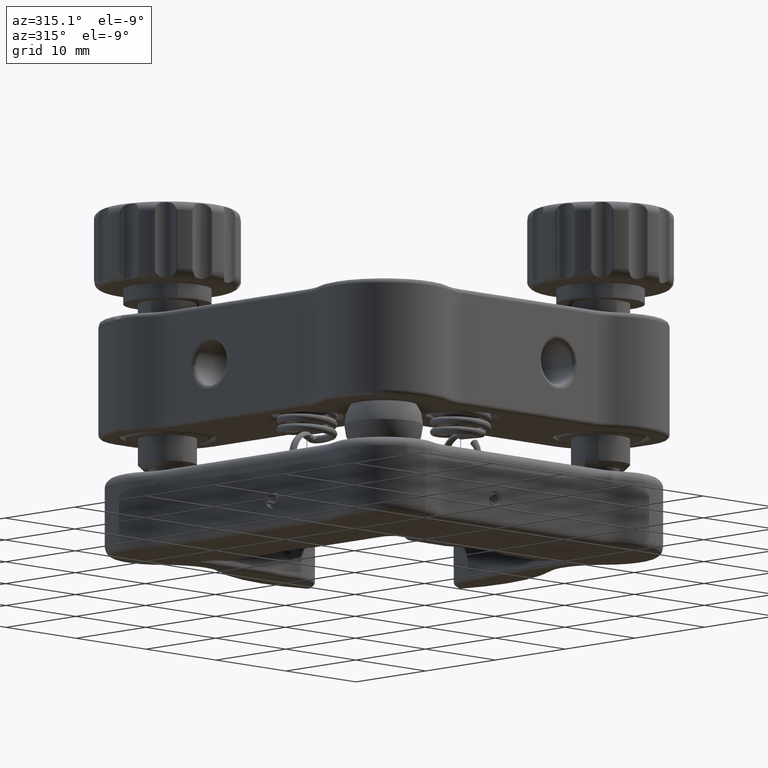
[diagram: clean part render]
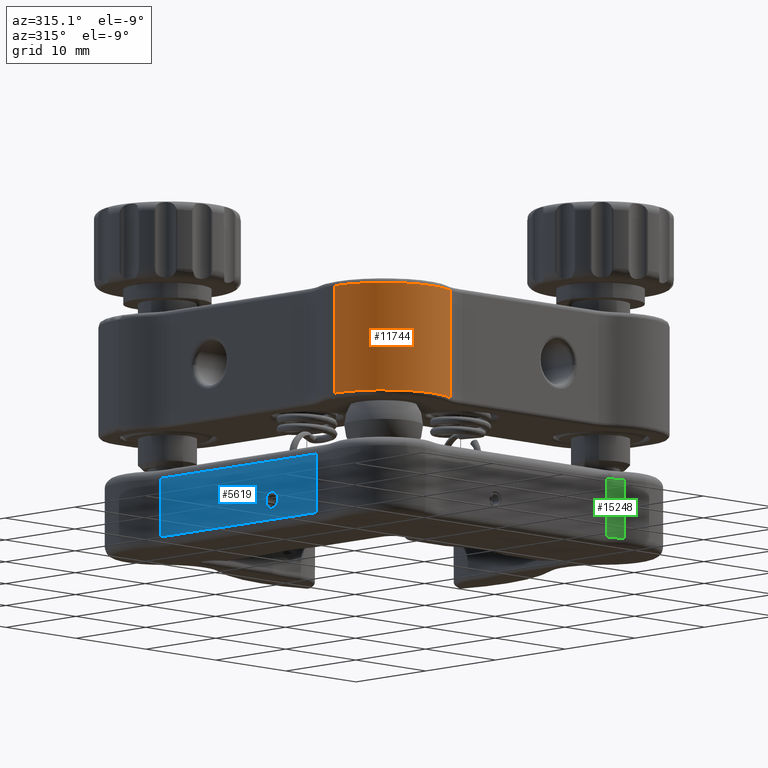
[diagram: same view with three faces highlighted in distinct colors, each labeled with its STEP entity id]
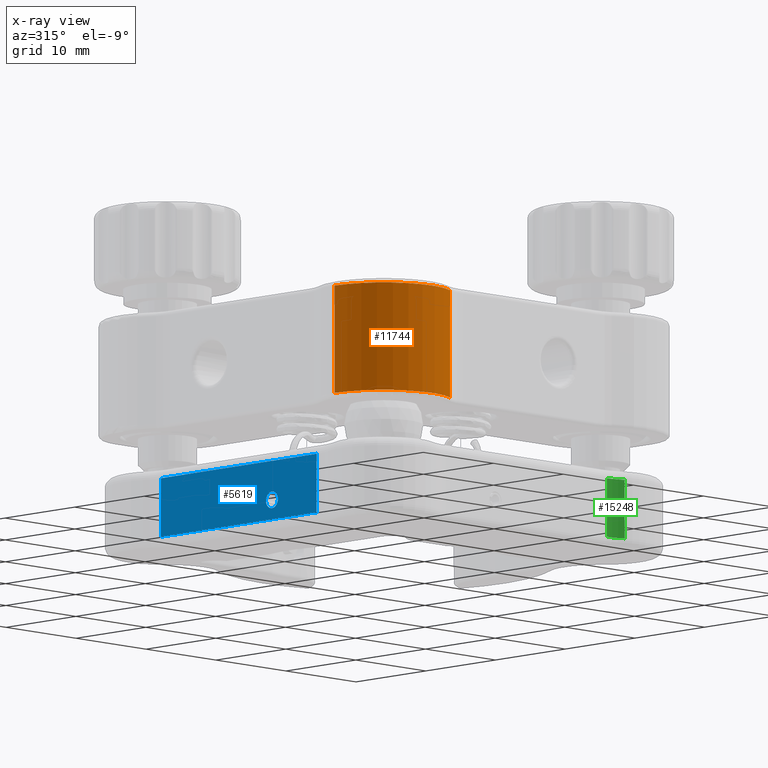
[diagram: x-ray of the same camera — body ghosted, the three highlighted faces saturated]
A machine part, auxiliary view with three faces highlighted in distinct colors.
The next image is the same camera in x-ray (body ghosted, the three faces saturated) — at least one of them is partly hidden behind the body in this view.
Their STEP definitions:

[orange] entity #11744 — the highlighted cylindrical surface (partial cylindrical patch) has radius 7 mm, axis along (-0, 0, 1).
#713 = CARTESIAN_POINT ( 'NONE',  ( 17.18022454005427200, 5.626593112451044500E-015, -5.500000000000000000 ) ) ;
#2095 = AXIS2_PLACEMENT_3D ( 'NONE', #17858, #3840, #10049 ) ;
#2543 = VECTOR ( 'NONE', #3613, 1000.000000000000000 ) ;
#3613 = DIRECTION ( 'NONE',  ( -1.387778780781445700E-017, 4.475005866372026300E-017, 1.000000000000000000 ) ) ;
#3840 = DIRECTION ( 'NONE',  ( -1.387778780781445700E-017, 4.475005866372026300E-017, 1.000000000000000000 ) ) ;
#4386 = AXIS2_PLACEMENT_3D ( 'NONE', #12047, #26326, #14118 ) ;
#4831 = CARTESIAN_POINT ( 'NONE',  ( 17.18022454005427200, 5.626593112451044500E-015, 5.500000000000000000 ) ) ;
#5424 = CIRCLE ( 'NONE', #4386, 7.000000000000044400 ) ;
#6173 = CARTESIAN_POINT ( 'NONE',  ( 27.56908496798587300, -6.125000000000014200, -5.500000000000001800 ) ) ;
#7052 = ORIENTED_EDGE ( 'NONE', *, *, #8219, .T. ) ;
#7899 = ORIENTED_EDGE ( 'NONE', *, *, #19826, .T. ) ;
#8219 = EDGE_CURVE ( 'NONE', #16919, #17382, #5424, .T. ) ;
#9693 = AXIS2_PLACEMENT_3D ( 'NONE', #10618, #24925, #16922 ) ;
#10049 = DIRECTION ( 'NONE',  ( -1.000000000000000000, -6.356272192396779600E-017, 2.478176394252565900E-016 ) ) ;
#10538 = ORIENTED_EDGE ( 'NONE', *, *, #25137, .F. ) ;
#10618 = CARTESIAN_POINT ( 'NONE',  ( 24.18022454005431900, 6.317657488569283100E-015, 5.500000000000000000 ) ) ;
#11744 = ADVANCED_FACE ( 'NONE', ( #20778 ), #23633, .T. ) ;
#12027 = EDGE_LOOP ( 'NONE', ( #10538, #7052, #23006, #7899 ) ) ;
#12047 = CARTESIAN_POINT ( 'NONE',  ( 24.18022454005431900, 5.825406843268360300E-015, -5.500000000000000000 ) ) ;
#14097 = EDGE_CURVE ( 'NONE', #17382, #21480, #21731, .T. ) ;
#14118 = DIRECTION ( 'NONE',  ( 1.000000000000000000, 6.356272192396779600E-017, -2.478176394252565900E-016 ) ) ;
#15654 = VECTOR ( 'NONE', #23442, 1000.000000000000000 ) ;
#16084 = CIRCLE ( 'NONE', #9693, 7.000000000000044400 ) ;
#16919 = VERTEX_POINT ( 'NONE', #713 ) ;
#16922 = DIRECTION ( 'NONE',  ( 1.000000000000000000, 6.356272192396779600E-017, -2.478176394252565900E-016 ) ) ;
#17382 = VERTEX_POINT ( 'NONE', #6173 ) ;
#17635 = CARTESIAN_POINT ( 'NONE',  ( 27.56908496798587300, -6.125000000000014200, -6.000000000000001800 ) ) ;
#17858 = CARTESIAN_POINT ( 'NONE',  ( 24.18022454005431900, 5.803031813936499900E-015, -6.000000000000000000 ) ) ;
#19820 = VERTEX_POINT ( 'NONE', #4831 ) ;
#19826 = EDGE_CURVE ( 'NONE', #21480, #19820, #16084, .T. ) ;
#20010 = CARTESIAN_POINT ( 'NONE',  ( 27.56908496798587300, -6.125000000000014200, 5.499999999999998200 ) ) ;
#20044 = CARTESIAN_POINT ( 'NONE',  ( 17.18022454005427200, 5.358092760468722800E-015, -5.999999999999998200 ) ) ;
#20778 = FACE_OUTER_BOUND ( 'NONE', #12027, .T. ) ;
#21480 = VERTEX_POINT ( 'NONE', #20010 ) ;
#21731 = LINE ( 'NONE', #17635, #15654 ) ;
#23006 = ORIENTED_EDGE ( 'NONE', *, *, #14097, .T. ) ;
#23442 = DIRECTION ( 'NONE',  ( -1.387778780781445700E-017, 4.475005866372026300E-017, 1.000000000000000000 ) ) ;
#23633 = CYLINDRICAL_SURFACE ( 'NONE', #2095, 7.000000000000044400 ) ;
#23940 = LINE ( 'NONE', #20044, #2543 ) ;
#24925 = DIRECTION ( 'NONE',  ( 1.387778780781445700E-017, -4.475005866372026300E-017, -1.000000000000000000 ) ) ;
#25137 = EDGE_CURVE ( 'NONE', #16919, #19820, #23940, .T. ) ;
#26326 = DIRECTION ( 'NONE',  ( -1.387778780781445700E-017, 4.475005866372026300E-017, 1.000000000000000000 ) ) ;

[blue] entity #5619 — the highlighted planar face has unit normal (-1, 0, 0).
#251 = DIRECTION ( 'NONE',  ( -1.000000000000000000, 1.499016184292483800E-016, 2.644345997068944400E-016 ) ) ;
#434 = CARTESIAN_POINT ( 'NONE',  ( 19.18022454005430400, 11.00000000000000400, -14.99999999999999800 ) ) ;
#1658 = CARTESIAN_POINT ( 'NONE',  ( 19.18022454005431500, 26.91742430504415800, -16.99999999999999600 ) ) ;
#1953 = ORIENTED_EDGE ( 'NONE', *, *, #20819, .F. ) ;
#2529 = VECTOR ( 'NONE', #7554, 1000.000000000000000 ) ;
#2593 = ORIENTED_EDGE ( 'NONE', *, *, #21099, .T. ) ;
#3013 = VERTEX_POINT ( 'NONE', #22707 ) ;
#3135 = CARTESIAN_POINT ( 'NONE',  ( 19.18022454005431900, 26.91742430504415800, -10.99999999999999800 ) ) ;
#3265 = PLANE ( 'NONE',  #19784 ) ;
#3858 = VECTOR ( 'NONE', #14721, 1000.000000000000000 ) ;
#5372 = EDGE_LOOP ( 'NONE', ( #11686, #1953 ) ) ;
#5565 = CARTESIAN_POINT ( 'NONE',  ( 19.18022454005431100, 4.582575694955838100, -17.00000000000000000 ) ) ;
#5619 = ADVANCED_FACE ( 'NONE', ( #6142, #11871 ), #3265, .T. ) ;
#6142 = FACE_BOUND ( 'NONE', #5372, .T. ) ;
#6955 = LINE ( 'NONE', #9604, #2529 ) ;
#7507 = DIRECTION ( 'NONE',  ( -1.000000000000000000, 1.499016184292483500E-016, 2.644345997068942400E-016 ) ) ;
#7554 = DIRECTION ( 'NONE',  ( -2.644345997068941500E-016, 1.942890293094024400E-016, -1.000000000000000000 ) ) ;
#7854 = EDGE_CURVE ( 'NONE', #12694, #15053, #20162, .T. ) ;
#8336 = DIRECTION ( 'NONE',  ( 0.0000000000000000000, 0.0000000000000000000, 1.000000000000000000 ) ) ;
#9192 = AXIS2_PLACEMENT_3D ( 'NONE', #434, #12529, #16776 ) ;
#9604 = CARTESIAN_POINT ( 'NONE',  ( 19.18022454005431500, 26.91742430504415800, -9.999999999999998200 ) ) ;
#9981 = LINE ( 'NONE', #3135, #22505 ) ;
#10215 = CARTESIAN_POINT ( 'NONE',  ( 19.18022454005430400, 11.00000000000000400, -14.99999999999999800 ) ) ;
#10912 = CARTESIAN_POINT ( 'NONE',  ( 19.18022454005431500, 4.582575694955838100, -10.00000000000000200 ) ) ;
#11686 = ORIENTED_EDGE ( 'NONE', *, *, #15322, .F. ) ;
#11871 = FACE_OUTER_BOUND ( 'NONE', #12517, .T. ) ;
#12517 = EDGE_LOOP ( 'NONE', ( #16897, #22833, #17448, #2593 ) ) ;
#12529 = DIRECTION ( 'NONE',  ( -1.000000000000000000, 1.499016184292483800E-016, 2.644345997068944400E-016 ) ) ;
#12694 = VERTEX_POINT ( 'NONE', #1658 ) ;
#14490 = EDGE_CURVE ( 'NONE', #17046, #12694, #6955, .T. ) ;
#14721 = DIRECTION ( 'NONE',  ( -1.499016184292483500E-016, -1.000000000000000000, -1.942890293094023900E-016 ) ) ;
#15053 = VERTEX_POINT ( 'NONE', #5565 ) ;
#15322 = EDGE_CURVE ( 'NONE', #19903, #23694, #17499, .T. ) ;
#16756 = CARTESIAN_POINT ( 'NONE',  ( 19.18022454005430400, 11.00000000000000400, -15.84999999999999600 ) ) ;
#16776 = DIRECTION ( 'NONE',  ( 0.0000000000000000000, 0.0000000000000000000, 1.000000000000000000 ) ) ;
#16897 = ORIENTED_EDGE ( 'NONE', *, *, #14490, .T. ) ;
#17046 = VERTEX_POINT ( 'NONE', #17059 ) ;
#17059 = CARTESIAN_POINT ( 'NONE',  ( 19.18022454005431500, 26.91742430504415800, -10.99999999999999800 ) ) ;
#17183 = DIRECTION ( 'NONE',  ( 1.499016184292483500E-016, 1.000000000000000000, 1.942890293094023900E-016 ) ) ;
#17448 = ORIENTED_EDGE ( 'NONE', *, *, #23771, .F. ) ;
#17499 = CIRCLE ( 'NONE', #17775, 0.8500000000000000900 ) ;
#17775 = AXIS2_PLACEMENT_3D ( 'NONE', #10215, #251, #8336 ) ;
#18279 = CARTESIAN_POINT ( 'NONE',  ( 19.18022454005431500, 4.582575694955838100, -10.00000000000000200 ) ) ;
#19328 = DIRECTION ( 'NONE',  ( -2.644345997068941500E-016, 1.942890293094024400E-016, -1.000000000000000000 ) ) ;
#19784 = AXIS2_PLACEMENT_3D ( 'NONE', #18279, #7507, #20329 ) ;
#19903 = VERTEX_POINT ( 'NONE', #22901 ) ;
#20162 = LINE ( 'NONE', #22781, #3858 ) ;
#20329 = DIRECTION ( 'NONE',  ( 2.644345997068941900E-016, -1.942890293094024200E-016, 1.000000000000000000 ) ) ;
#20819 = EDGE_CURVE ( 'NONE', #23694, #19903, #20912, .T. ) ;
#20912 = CIRCLE ( 'NONE', #9192, 0.8500000000000000900 ) ;
#21099 = EDGE_CURVE ( 'NONE', #3013, #17046, #9981, .T. ) ;
#22505 = VECTOR ( 'NONE', #17183, 1000.000000000000000 ) ;
#22707 = CARTESIAN_POINT ( 'NONE',  ( 19.18022454005431500, 4.582575694955838100, -11.00000000000000400 ) ) ;
#22781 = CARTESIAN_POINT ( 'NONE',  ( 19.18022454005431100, 4.582575694955838100, -17.00000000000000000 ) ) ;
#22833 = ORIENTED_EDGE ( 'NONE', *, *, #7854, .T. ) ;
#22901 = CARTESIAN_POINT ( 'NONE',  ( 19.18022454005430400, 11.00000000000000400, -14.14999999999999700 ) ) ;
#23694 = VERTEX_POINT ( 'NONE', #16756 ) ;
#23771 = EDGE_CURVE ( 'NONE', #3013, #15053, #26161, .T. ) ;
#24293 = VECTOR ( 'NONE', #19328, 1000.000000000000000 ) ;
#26161 = LINE ( 'NONE', #10912, #24293 ) ;

[green] entity #15248 — the highlighted cylindrical surface (partial cylindrical patch) has radius 5 mm, axis along (-0, 0, -1).
#8 = AXIS2_PLACEMENT_3D ( 'NONE', #8507, #22667, #14699 ) ;
#804 = CARTESIAN_POINT ( 'NONE',  ( 53.18063779735110300, -5.454545454545452400, -11.00000000000001200 ) ) ;
#812 = DIRECTION ( 'NONE',  ( 2.644345997068941900E-016, -1.942890293094024400E-016, 1.000000000000000000 ) ) ;
#894 = CYLINDRICAL_SURFACE ( 'NONE', #8, 4.999999999999995600 ) ;
#966 = AXIS2_PLACEMENT_3D ( 'NONE', #4815, #812, #21263 ) ;
#1793 = CARTESIAN_POINT ( 'NONE',  ( 51.09764884509846200, -9.999999999999991100, -17.00000000000001100 ) ) ;
#4377 = VERTEX_POINT ( 'NONE', #21409 ) ;
#4815 = CARTESIAN_POINT ( 'NONE',  ( 51.09764884509846200, -9.999999999999994700, -11.00000000000001200 ) ) ;
#5398 = CARTESIAN_POINT ( 'NONE',  ( 51.09764884509846200, -4.999999999999996400, -10.00000000000001200 ) ) ;
#5488 = DIRECTION ( 'NONE',  ( -2.644345997068941500E-016, 1.942890293094024400E-016, -1.000000000000000000 ) ) ;
#5646 = CARTESIAN_POINT ( 'NONE',  ( 53.18063779735110300, -5.454545454545452400, -10.00000000000001400 ) ) ;
#5793 = CARTESIAN_POINT ( 'NONE',  ( 51.09764884509846200, -4.999999999999995600, -11.00000000000001200 ) ) ;
#7117 = EDGE_CURVE ( 'NONE', #11994, #13458, #18268, .T. ) ;
#8507 = CARTESIAN_POINT ( 'NONE',  ( 51.09764884509846200, -9.999999999999994700, -10.00000000000001400 ) ) ;
#9444 = ORIENTED_EDGE ( 'NONE', *, *, #18454, .F. ) ;
#9717 = ORIENTED_EDGE ( 'NONE', *, *, #15179, .T. ) ;
#10151 = VERTEX_POINT ( 'NONE', #12457 ) ;
#11414 = VECTOR ( 'NONE', #5488, 1000.000000000000000 ) ;
#11683 = EDGE_CURVE ( 'NONE', #10151, #4377, #22398, .T. ) ;
#11994 = VERTEX_POINT ( 'NONE', #804 ) ;
#12457 = CARTESIAN_POINT ( 'NONE',  ( 51.09764884509846200, -4.999999999999994700, -17.00000000000001100 ) ) ;
#13458 = VERTEX_POINT ( 'NONE', #5793 ) ;
#13546 = LINE ( 'NONE', #5646, #24427 ) ;
#14699 = DIRECTION ( 'NONE',  ( 0.0000000000000000000, -1.000000000000000000, -3.469446951953617100E-016 ) ) ;
#15179 = EDGE_CURVE ( 'NONE', #13458, #10151, #22967, .T. ) ;
#15248 = ADVANCED_FACE ( 'NONE', ( #21048 ), #894, .F. ) ;
#15715 = ORIENTED_EDGE ( 'NONE', *, *, #11683, .T. ) ;
#17772 = ORIENTED_EDGE ( 'NONE', *, *, #7117, .T. ) ;
#18268 = CIRCLE ( 'NONE', #966, 4.999999999999995600 ) ;
#18454 = EDGE_CURVE ( 'NONE', #11994, #4377, #13546, .T. ) ;
#19919 = DIRECTION ( 'NONE',  ( 0.0000000000000000000, -1.000000000000000000, 0.0000000000000000000 ) ) ;
#20148 = DIRECTION ( 'NONE',  ( -2.644345997068941500E-016, 1.942890293094024400E-016, -1.000000000000000000 ) ) ;
#21048 = FACE_OUTER_BOUND ( 'NONE', #22139, .T. ) ;
#21263 = DIRECTION ( 'NONE',  ( 0.0000000000000000000, -1.000000000000000000, -3.469446951953617100E-016 ) ) ;
#21409 = CARTESIAN_POINT ( 'NONE',  ( 53.18063779735110300, -5.454545454545450600, -17.00000000000001100 ) ) ;
#22139 = EDGE_LOOP ( 'NONE', ( #9717, #15715, #9444, #17772 ) ) ;
#22398 = CIRCLE ( 'NONE', #24001, 4.999999999999995600 ) ;
#22667 = DIRECTION ( 'NONE',  ( -2.644345997068941900E-016, 1.942890293094024400E-016, -1.000000000000000000 ) ) ;
#22967 = LINE ( 'NONE', #5398, #11414 ) ;
#24001 = AXIS2_PLACEMENT_3D ( 'NONE', #1793, #26387, #19919 ) ;
#24427 = VECTOR ( 'NONE', #20148, 1000.000000000000000 ) ;
#26387 = DIRECTION ( 'NONE',  ( -2.644345997068941900E-016, 1.942890293094024400E-016, -1.000000000000000000 ) ) ;